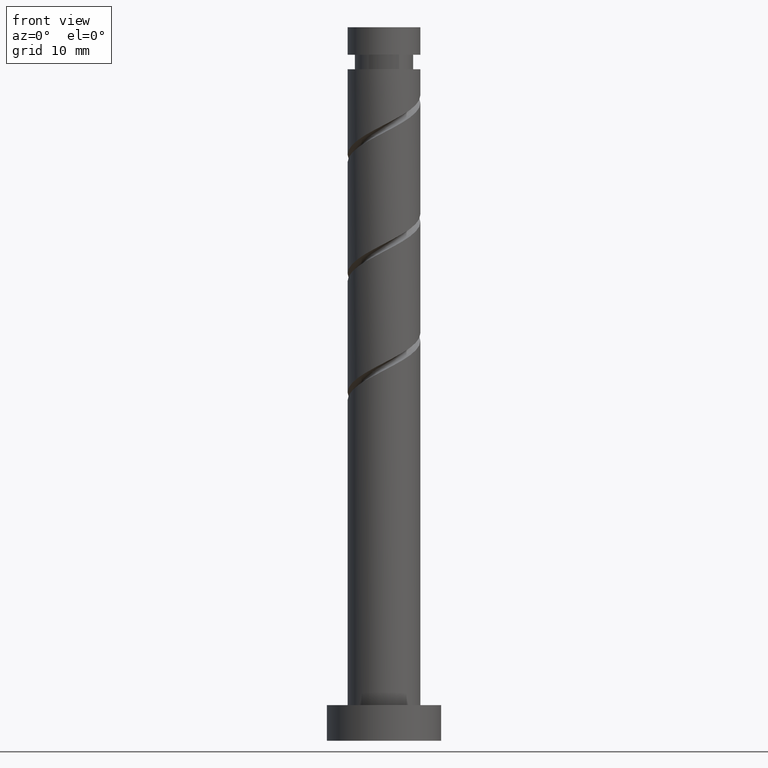
[diagram: clean part render]
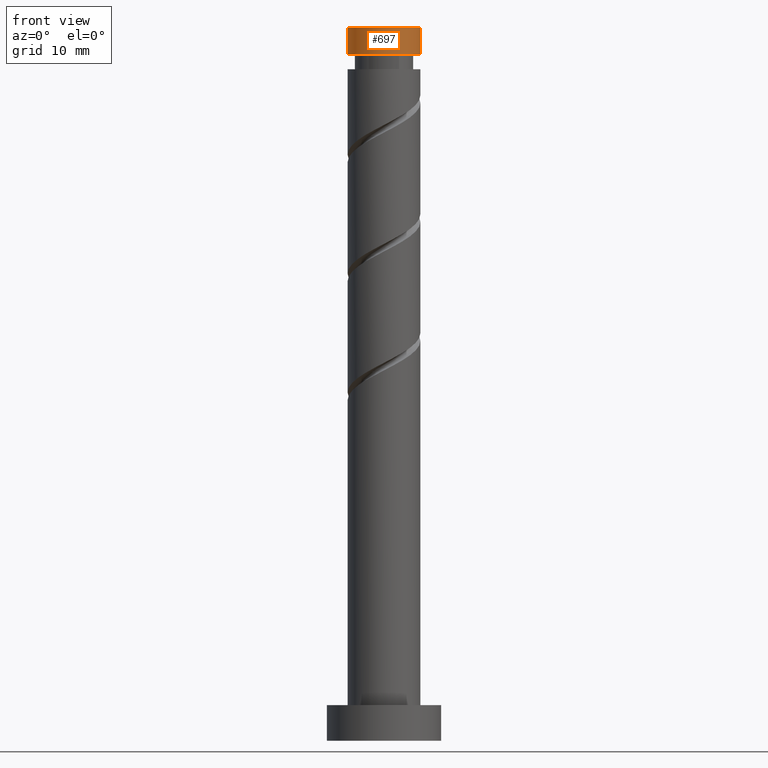
[diagram: same view with one face highlighted and labeled with its STEP entity id]
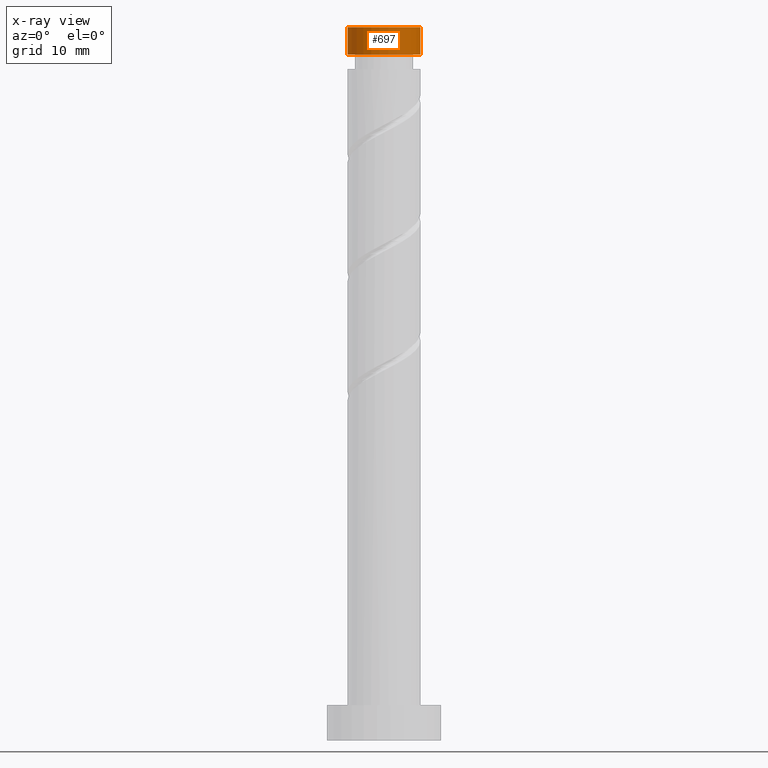
[diagram: x-ray of the same camera — body ghosted, the highlighted face saturated]
A machine part, front view. The second image highlights one B-rep face of the part: STEP entity #697.
The next image is the same camera in x-ray: the body ghosted, the highlighted face saturated — about 0% of this face is hidden behind the body in this view.
In plain terms, the highlighted cylindrical surface (edge-blend (fillet) strip) has radius 5.1 mm, axis along (-0, -0, -1).
Its self-contained STEP definition (entity closure, byte-faithful):
#92 = VERTEX_POINT ( 'NONE', #964 ) ;
#102 = LINE ( 'NONE', #211, #1171 ) ;
#105 = AXIS2_PLACEMENT_3D ( 'NONE', #699, #127, #1161 ) ;
#127 = DIRECTION ( 'NONE',  ( -0.000000000000000000, -0.000000000000000000, -1.000000000000000000 ) ) ;
#130 = EDGE_CURVE ( 'NONE', #1042, #92, #1298, .T. ) ;
#211 = CARTESIAN_POINT ( 'NONE',  ( 5.099999999999999645, 6.245698675651500839E-16, 100.0000000000000000 ) ) ;
#218 = DIRECTION ( 'NONE',  ( -0.000000000000000000, -0.000000000000000000, -1.000000000000000000 ) ) ;
#224 = DIRECTION ( 'NONE',  ( -0.000000000000000000, -0.000000000000000000, -1.000000000000000000 ) ) ;
#273 = AXIS2_PLACEMENT_3D ( 'NONE', #1105, #302, #1238 ) ;
#299 = CARTESIAN_POINT ( 'NONE',  ( 5.099999999999999645, 6.245698675651500839E-16, 100.0000000000000000 ) ) ;
#301 = ORIENTED_EDGE ( 'NONE', *, *, #1219, .F. ) ;
#302 = DIRECTION ( 'NONE',  ( 0.000000000000000000, 0.000000000000000000, 1.000000000000000000 ) ) ;
#320 = CARTESIAN_POINT ( 'NONE',  ( 5.100000000000000533, 6.245698675651501825E-16, 96.15197942180186885 ) ) ;
#401 = VERTEX_POINT ( 'NONE', #909 ) ;
#452 = CARTESIAN_POINT ( 'NONE',  ( -5.099999999999999645, 0.000000000000000000, 100.0000000000000000 ) ) ;
#463 = FACE_OUTER_BOUND ( 'NONE', #1384, .T. ) ;
#564 = AXIS2_PLACEMENT_3D ( 'NONE', #607, #1487, #1181 ) ;
#565 = EDGE_CURVE ( 'NONE', #401, #796, #1426, .T. ) ;
#582 = CYLINDRICAL_SURFACE ( 'NONE', #105, 5.099999999999999645 ) ;
#607 = CARTESIAN_POINT ( 'NONE',  ( 0.000000000000000000, 0.000000000000000000, 96.15197942180186885 ) ) ;
#697 = ADVANCED_FACE ( 'NONE', ( #463 ), #582, .T. ) ;
#699 = CARTESIAN_POINT ( 'NONE',  ( 0.000000000000000000, 0.000000000000000000, 100.0000000000000000 ) ) ;
#796 = VERTEX_POINT ( 'NONE', #299 ) ;
#909 = CARTESIAN_POINT ( 'NONE',  ( -5.099999999999999645, 0.000000000000000000, 100.0000000000000000 ) ) ;
#910 = ORIENTED_EDGE ( 'NONE', *, *, #565, .F. ) ;
#964 = CARTESIAN_POINT ( 'NONE',  ( -5.100000000000000533, 0.000000000000000000, 96.15197942180186885 ) ) ;
#1042 = VERTEX_POINT ( 'NONE', #320 ) ;
#1104 = ORIENTED_EDGE ( 'NONE', *, *, #1309, .T. ) ;
#1105 = CARTESIAN_POINT ( 'NONE',  ( 0.000000000000000000, 0.000000000000000000, 100.0000000000000000 ) ) ;
#1150 = LINE ( 'NONE', #452, #1257 ) ;
#1161 = DIRECTION ( 'NONE',  ( -1.000000000000000000, 0.000000000000000000, 0.000000000000000000 ) ) ;
#1171 = VECTOR ( 'NONE', #224, 1000.000000000000000 ) ;
#1181 = DIRECTION ( 'NONE',  ( -1.000000000000000000, 0.000000000000000000, 0.000000000000000000 ) ) ;
#1219 = EDGE_CURVE ( 'NONE', #796, #1042, #102, .T. ) ;
#1238 = DIRECTION ( 'NONE',  ( 1.000000000000000000, 0.000000000000000000, 0.000000000000000000 ) ) ;
#1257 = VECTOR ( 'NONE', #218, 1000.000000000000000 ) ;
#1298 = CIRCLE ( 'NONE', #564, 5.100000000000000533 ) ;
#1309 = EDGE_CURVE ( 'NONE', #401, #92, #1150, .T. ) ;
#1360 = ORIENTED_EDGE ( 'NONE', *, *, #130, .F. ) ;
#1384 = EDGE_LOOP ( 'NONE', ( #301, #910, #1104, #1360 ) ) ;
#1426 = CIRCLE ( 'NONE', #273, 5.099999999999999645 ) ;
#1487 = DIRECTION ( 'NONE',  ( -0.000000000000000000, -0.000000000000000000, -1.000000000000000000 ) ) ;